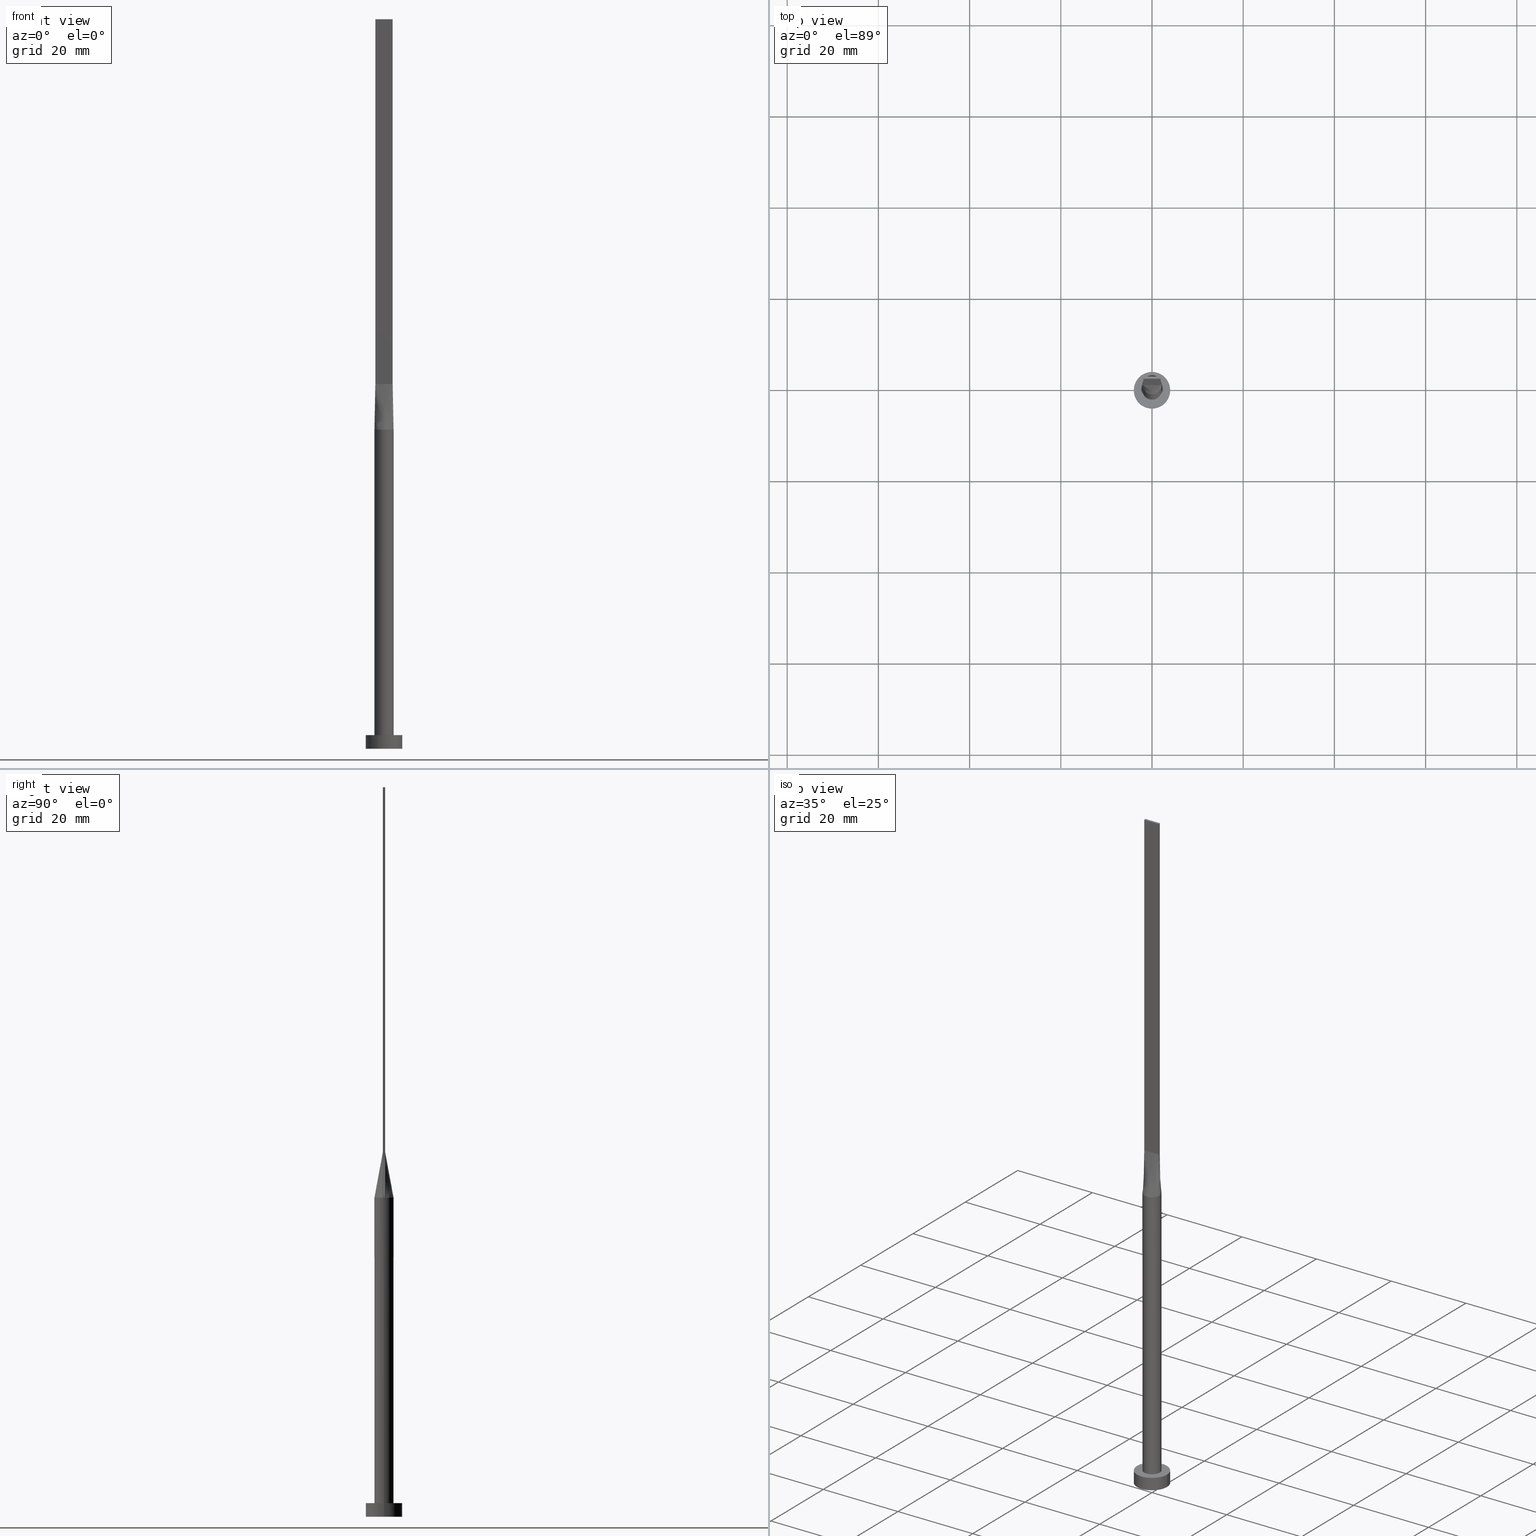
[diagram: canonical four-view strip — front | top / right | iso, engineering-drawing reading convention]
A machine part, canonical four-view strip (front | top / right | iso — engineering-drawing reading convention). The complete STEP part file that produces these views, byte-faithful:
ISO-10303-21;
HEADER;
FILE_DESCRIPTION (( 'STEP AP203' ),
    '1' );
FILE_NAME ('c076.STEP',
    '2026-02-12T09:05:30',
    ( '' ),
    ( '' ),
    'SwSTEP 2.0',
    'SolidWorks 2019',
    '' );
FILE_SCHEMA (( 'CONFIG_CONTROL_DESIGN' ));
ENDSEC;

DATA;
#1 = EDGE_CURVE ( 'NONE', #322, #348, #307, .T. ) ;
#2 = VERTEX_POINT ( 'NONE', #399 ) ;
#3 = CARTESIAN_POINT ( 'NONE',  ( 0.6333333333333343029, -0.2499999999999996669, 79.99999999999998579 ) ) ;
#4 = ORIENTED_EDGE ( 'NONE', *, *, #154, .T. ) ;
#5 = CARTESIAN_POINT ( 'NONE',  ( 0.3069641454662044300, 2.100000000000000089, 70.00000000000000000 ) ) ;
#6 = ORIENTED_EDGE ( 'NONE', *, *, #168, .T. ) ;
#7 = EDGE_CURVE ( 'NONE', #393, #75, #578, .T. ) ;
#8 = CARTESIAN_POINT ( 'NONE',  ( -1.899999999999999911, 0.2500000000000002220, 80.00000000000000000 ) ) ;
#9 = VECTOR ( 'NONE', #572, 1000.000000000000114 ) ;
#10 = CYLINDRICAL_SURFACE ( 'NONE', #85, 4.000000000000000000 ) ;
#11 = EDGE_LOOP ( 'NONE', ( #44, #581, #527, #406 ) ) ;
#12 = LOCAL_TIME ( 10, 5, 30.00000000000000000, #465 ) ;
#13 = ORGANIZATION ( 'NEUR�EN�', 'NEUR�EN�', '' ) ;
#14 = AXIS2_PLACEMENT_3D ( 'NONE', #229, #189, #356 ) ;
#15 = DATE_TIME_ROLE ( 'creation_date' ) ;
#16 = CALENDAR_DATE ( 2026, 12, 2 ) ;
#17 = ORIENTED_EDGE ( 'NONE', *, *, #187, .F. ) ;
#18 = CC_DESIGN_DATE_AND_TIME_ASSIGNMENT ( #508, #318, ( #343 ) ) ;
#19 = PRODUCT_DEFINITION_SHAPE ( 'NONE', 'NONE',  #60 ) ;
#20 = CARTESIAN_POINT ( 'NONE',  ( -1.899999999999999911, -0.2499999999999995837, 80.00000000000000000 ) ) ;
#21 = CARTESIAN_POINT ( 'NONE',  ( -1.991027010319671220, 0.2619772381999564970, 75.00000000000001421 ) ) ;
#22 = PERSON_AND_ORGANIZATION_ROLE ( 'creator' ) ;
#23 = EDGE_CURVE ( 'NONE', #487, #361, #146, .T. ) ;
#24 = ADVANCED_BREP_SHAPE_REPRESENTATION ( 'c076', ( #309, #510 ), #159 ) ;
#25 = VECTOR ( 'NONE', #340, 1000.000000000000000 ) ;
#26 = CARTESIAN_POINT ( 'NONE',  ( -1.266666666666665941, -0.2499999999999995837, 79.99999999999998579 ) ) ;
#27 = DIRECTION ( 'NONE',  ( 1.000000000000000000, 0.000000000000000000, 0.000000000000000000 ) ) ;
#28 = ADVANCED_FACE ( 'NONE', ( #78 ), #531, .F. ) ;
#29 = CARTESIAN_POINT ( 'NONE',  ( -1.741666666666666474, -0.2499999999999995837, 79.99999999999998579 ) ) ;
#30 = CARTESIAN_POINT ( 'NONE',  ( -2.099923319482092765, -0.09170834779832252870, 70.00000000000000000 ) ) ;
#31 = FACE_OUTER_BOUND ( 'NONE', #317, .T. ) ;
#32 = CARTESIAN_POINT ( 'NONE',  ( 0.000000000000000000, 0.000000000000000000, 160.0000000000000000 ) ) ;
#33 = B_SPLINE_SURFACE_WITH_KNOTS ( 'NONE', 3, 1, ( 
 ( #296, #479 ),
 ( #256, #433 ),
 ( #292, #162 ),
 ( #30, #383 ),
 ( #108, #290 ),
 ( #342, #252 ) ),
 .UNSPECIFIED., .F., .F., .F.,
 ( 4, 2, 4 ),
 ( 2, 2 ),
 ( 0.000000000000000000, 0.5000000000000000000, 1.000000000000000000 ),
 ( 0.000000000000000000, 1.000000000000000000 ),
 .UNSPECIFIED. ) ;
#34 = CARTESIAN_POINT ( 'NONE',  ( -1.899999999999999911, -0.2499999999999995837, 160.0000000000000000 ) ) ;
#35 = ORIENTED_EDGE ( 'NONE', *, *, #65, .F. ) ;
#36 = ORIENTED_EDGE ( 'NONE', *, *, #275, .F. ) ;
#37 = CARTESIAN_POINT ( 'NONE',  ( -2.099961659741046649, -5.286755615166558459E-16, 70.00000000000000000 ) ) ;
#38 = AXIS2_PLACEMENT_3D ( 'NONE', #209, #381, #562 ) ;
#39 = CIRCLE ( 'NONE', #291, 4.000000000000000000 ) ;
#40 = EDGE_LOOP ( 'NONE', ( #87, #241 ) ) ;
#41 = CARTESIAN_POINT ( 'NONE',  ( -0.1583333333333323822, -0.2499999999999996392, 80.00000000000000000 ) ) ;
#42 = CARTESIAN_POINT ( 'NONE',  ( -1.370324685961209266, 1.611984358543462559, 70.00000000000001421 ) ) ;
#43 = CARTESIAN_POINT ( 'NONE',  ( 1.899999999999999689, 0.08333333333333341197, 79.99999999999998579 ) ) ;
#44 = ORIENTED_EDGE ( 'NONE', *, *, #23, .T. ) ;
#45 = ORIENTED_EDGE ( 'NONE', *, *, #144, .T. ) ;
#46 = LINE ( 'NONE', #315, #460 ) ;
#47 = EDGE_LOOP ( 'NONE', ( #129, #495, #311, #297 ) ) ;
#48 = EDGE_CURVE ( 'NONE', #497, #125, #395, .T. ) ;
#49 = ORIENTED_EDGE ( 'NONE', *, *, #549, .F. ) ;
#50 = CARTESIAN_POINT ( 'NONE',  ( 4.000000000000000000, 4.898587196589412829E-16, 0.000000000000000000 ) ) ;
#51 = ORIENTED_EDGE ( 'NONE', *, *, #117, .T. ) ;
#52 = PRODUCT_RELATED_PRODUCT_CATEGORY ( 'detail', '', ( #103 ) ) ;
#53 = AXIS2_PLACEMENT_3D ( 'NONE', #564, #469, #164 ) ;
#54 = CARTESIAN_POINT ( 'NONE',  ( 0.3069641454662038194, -2.100000000000000089, 70.00000000000000000 ) ) ;
#55 = ORIENTED_EDGE ( 'NONE', *, *, #272, .T. ) ;
#56 = CARTESIAN_POINT ( 'NONE',  ( 0.6333333333333314163, 0.2500000000000002220, 79.99999999999998579 ) ) ;
#57 = CARTESIAN_POINT ( 'NONE',  ( 0.000000000000000000, 0.000000000000000000, 0.000000000000000000 ) ) ;
#58 = CARTESIAN_POINT ( 'NONE',  ( -2.013179673790353341, 0.6348343983169374427, 69.99999999999998579 ) ) ;
#59 = DIRECTION ( 'NONE',  ( 1.000000000000000000, 0.000000000000000000, -0.000000000000000000 ) ) ;
#60 = PRODUCT_DEFINITION ( 'NEZN�M�', '', #262, #423 ) ;
#61 = CARTESIAN_POINT ( 'NONE',  ( -1.719140910005030554, 1.233222546295088762, 69.99999999999998579 ) ) ;
#62 = CARTESIAN_POINT ( 'NONE',  ( 1.843490440271194020, 1.028323931880309905, 69.99999999999998579 ) ) ;
#63 = CALENDAR_DATE ( 2026, 12, 2 ) ;
#64 = APPLICATION_CONTEXT ( 'configuration controlled 3d designs of mechanical parts and assemblies' ) ;
#65 = EDGE_CURVE ( 'NONE', #535, #125, #507, .T. ) ;
#66 = DIRECTION ( 'NONE',  ( 0.000000000000000000, 0.000000000000000000, 1.000000000000000000 ) ) ;
#67 = APPROVAL_PERSON_ORGANIZATION ( #419, #268, #368 ) ;
#68 = PERSON_AND_ORGANIZATION ( #391, #13 ) ;
#69 = LINE ( 'NONE', #111, #339 ) ;
#70 = CIRCLE ( 'NONE', #501, 4.000000000000000000 ) ;
#71 = DIRECTION ( 'NONE',  ( -0.000000000000000000, -0.000000000000000000, -1.000000000000000000 ) ) ;
#72 = CARTESIAN_POINT ( 'NONE',  ( -2.082200117151096208, 0.2739731464735293276, 70.00000000000000000 ) ) ;
#73 = LINE ( 'NONE', #213, #178 ) ;
#74 = ORIENTED_EDGE ( 'NONE', *, *, #539, .F. ) ;
#75 = VERTEX_POINT ( 'NONE', #474 ) ;
#76 = CARTESIAN_POINT ( 'NONE',  ( 1.719140910005030110, 1.233222546295088762, 70.00000000000000000 ) ) ;
#77 = ORIENTED_EDGE ( 'NONE', *, *, #1, .T. ) ;
#78 = FACE_OUTER_BOUND ( 'NONE', #135, .T. ) ;
#79 = CARTESIAN_POINT ( 'NONE',  ( -0.7916666666666655194, -0.2499999999999995837, 79.99999999999998579 ) ) ;
#80 = CARTESIAN_POINT ( 'NONE',  ( 1.144666002056102583, 1.784802689656027397, 70.00000000000000000 ) ) ;
#81 = DIRECTION ( 'NONE',  ( -0.000000000000000000, -0.000000000000000000, -1.000000000000000000 ) ) ;
#82 = DIRECTION ( 'NONE',  ( -1.000000000000000000, 0.000000000000000000, 0.000000000000000000 ) ) ;
#83 = CARTESIAN_POINT ( 'NONE',  ( 1.899999999999999023, -0.2499999999999997780, 160.0000000000000000 ) ) ;
#84 = ORIENTED_EDGE ( 'NONE', *, *, #441, .F. ) ;
#85 = AXIS2_PLACEMENT_3D ( 'NONE', #190, #310, #412 ) ;
#86 = DIRECTION ( 'NONE',  ( 0.000000000000000000, -1.000000000000000000, 0.000000000000000000 ) ) ;
#87 = ORIENTED_EDGE ( 'NONE', *, *, #128, .T. ) ;
#88 = DIRECTION ( 'NONE',  ( -0.000000000000000000, -0.000000000000000000, -1.000000000000000000 ) ) ;
#89 = ORIENTED_EDGE ( 'NONE', *, *, #533, .F. ) ;
#90 = CARTESIAN_POINT ( 'NONE',  ( 1.370324685961209044, 1.611984358543462781, 70.00000000000001421 ) ) ;
#91 = VERTEX_POINT ( 'NONE', #337 ) ;
#92 = DIRECTION ( 'NONE',  ( -1.000000000000000000, 0.000000000000000000, 0.000000000000000000 ) ) ;
#93 = ORIENTED_EDGE ( 'NONE', *, *, #187, .T. ) ;
#94 = APPROVAL_STATUS ( 'not_yet_approved' ) ;
#95 = VECTOR ( 'NONE', #86, 1000.000000000000000 ) ;
#96 = CARTESIAN_POINT ( 'NONE',  ( 1.144666002056102583, 1.784802689656027397, 70.00000000000000000 ) ) ;
#97 = CARTESIAN_POINT ( 'NONE',  ( 1.741666666666665586, 0.2500000000000002220, 79.99999999999998579 ) ) ;
#98 = EDGE_CURVE ( 'NONE', #91, #269, #514, .T. ) ;
#99 = CARTESIAN_POINT ( 'NONE',  ( 1.899999999999999023, 0.2500000000000002220, 80.00000000000000000 ) ) ;
#100 = PERSON_AND_ORGANIZATION ( #391, #13 ) ;
#101 = CARTESIAN_POINT ( 'NONE',  ( 2.082054020639342085, 0.2739544763999138266, 70.00000000000000000 ) ) ;
#102 = AXIS2_PLACEMENT_3D ( 'NONE', #378, #427, #27 ) ;
#103 = PRODUCT ( 'c076', 'c076', '', ( #244 ) ) ;
#104 = APPROVAL_ROLE ( '' ) ;
#105 = CARTESIAN_POINT ( 'NONE',  ( 2.100000000000000089, 2.571758278209441957E-16, 70.00000000000000000 ) ) ;
#106 = EDGE_CURVE ( 'NONE', #155, #497, #537, .T. ) ;
#107 = SHAPE_DEFINITION_REPRESENTATION ( #19, #24 ) ;
#108 = CARTESIAN_POINT ( 'NONE',  ( -2.093966886534509353, -0.1834166955966453350, 70.00000000000000000 ) ) ;
#109 = CARTESIAN_POINT ( 'NONE',  ( -1.144666002056102361, 1.784802689656027619, 70.00000000000001421 ) ) ;
#110 = CARTESIAN_POINT ( 'NONE',  ( -2.059419575438525385, -0.4459762599261209992, 70.00000000000002842 ) ) ;
#111 = CARTESIAN_POINT ( 'NONE',  ( 1.899999999999999023, -0.2499999999999997780, 160.0000000000000000 ) ) ;
#112 = AXIS2_PLACEMENT_3D ( 'NONE', #518, #133, #182 ) ;
#113 = VECTOR ( 'NONE', #359, 1000.000000000000000 ) ;
#114 = PLANE ( 'NONE',  #321 ) ;
#115 = VECTOR ( 'NONE', #88, 1000.000000000000000 ) ;
#116 = CC_DESIGN_APPROVAL ( #137, ( #343 ) ) ;
#117 = EDGE_CURVE ( 'NONE', #238, #322, #69, .T. ) ;
#118 = CARTESIAN_POINT ( 'NONE',  ( 2.082054020639342085, -0.2739544763999143262, 70.00000000000000000 ) ) ;
#119 = FACE_OUTER_BOUND ( 'NONE', #525, .T. ) ;
#120 = ORIENTED_EDGE ( 'NONE', *, *, #48, .T. ) ;
#121 = CARTESIAN_POINT ( 'NONE',  ( -1.843490440271193798, 1.028323931880310349, 70.00000000000001421 ) ) ;
#122 = AXIS2_PLACEMENT_3D ( 'NONE', #571, #175, #126 ) ;
#123 = DIRECTION ( 'NONE',  ( -0.000000000000000000, 1.000000000000000000, -0.000000000000000000 ) ) ;
#124 = CARTESIAN_POINT ( 'NONE',  ( 1.266666666666666829, -0.2499999999999996669, 79.99999999999998579 ) ) ;
#125 = VERTEX_POINT ( 'NONE', #250 ) ;
#126 = DIRECTION ( 'NONE',  ( 1.000000000000000000, -2.131628207280300558E-14, 0.000000000000000000 ) ) ;
#127 = CARTESIAN_POINT ( 'NONE',  ( -2.082200117151096208, 0.2739731464735293276, 70.00000000000000000 ) ) ;
#128 = EDGE_CURVE ( 'NONE', #91, #459, #222, .T. ) ;
#129 = ORIENTED_EDGE ( 'NONE', *, *, #328, .T. ) ;
#130 = CARTESIAN_POINT ( 'NONE',  ( 2.013179673790352897, -0.6348343983169382199, 69.99999999999998579 ) ) ;
#131 = ORIENTED_EDGE ( 'NONE', *, *, #539, .T. ) ;
#132 = FACE_OUTER_BOUND ( 'NONE', #390, .T. ) ;
#133 = DIRECTION ( 'NONE',  ( -1.000000000000000000, 1.734723475976807094E-15, 0.000000000000000000 ) ) ;
#134 = CARTESIAN_POINT ( 'NONE',  ( 2.100000000000000089, 2.571758278209441957E-16, 3.000000000000000000 ) ) ;
#135 = EDGE_LOOP ( 'NONE', ( #77, #235, #541, #51 ) ) ;
#136 = VECTOR ( 'NONE', #171, 1000.000000000000000 ) ;
#137 = APPROVAL ( #94, 'NEUR�EN�' ) ;
#138 = CARTESIAN_POINT ( 'NONE',  ( -2.082216547150284924, -0.2739753355370637133, 70.00000000000000000 ) ) ;
#139 = CARTESIAN_POINT ( 'NONE',  ( 2.082200219287980492, 0.2739732417105839035, 70.00000000000000000 ) ) ;
#140 = ADVANCED_FACE ( 'NONE', ( #167 ), #253, .F. ) ;
#141 = CARTESIAN_POINT ( 'NONE',  ( 0.000000000000000000, 0.000000000000000000, 70.00000000000000000 ) ) ;
#142 = LINE ( 'NONE', #316, #499 ) ;
#143 = COORDINATED_UNIVERSAL_TIME_OFFSET ( 1, 0, .AHEAD. ) ;
#144 = EDGE_CURVE ( 'NONE', #555, #269, #350, .T. ) ;
#145 = PLANE ( 'NONE',  #223 ) ;
#146 = CIRCLE ( 'NONE', #211, 2.100000000000000089 ) ;
#147 =( NAMED_UNIT ( * ) SI_UNIT ( $, .STERADIAN. ) SOLID_ANGLE_UNIT ( ) );
#148 = VECTOR ( 'NONE', #435, 1000.000000000000000 ) ;
#149 = APPROVAL ( #245, 'NEUR�EN�' ) ;
#150 = CARTESIAN_POINT ( 'NONE',  ( -2.082054020639342529, -0.2739544763999126609, 70.00000000000000000 ) ) ;
#151 = PERSON_AND_ORGANIZATION ( #391, #13 ) ;
#152 = VERTEX_POINT ( 'NONE', #246 ) ;
#153 = CARTESIAN_POINT ( 'NONE',  ( -2.059419575438525385, 0.4459762599261216653, 70.00000000000001421 ) ) ;
#154 = EDGE_CURVE ( 'NONE', #152, #535, #332, .T. ) ;
#155 = VERTEX_POINT ( 'NONE', #72 ) ;
#156 = PERSON_AND_ORGANIZATION_ROLE ( 'design_supplier' ) ;
#157 = VECTOR ( 'NONE', #266, 1000.000000000000000 ) ;
#158 = DIRECTION ( 'NONE',  ( 0.000000000000000000, 0.000000000000000000, 1.000000000000000000 ) ) ;
#159 =( GEOMETRIC_REPRESENTATION_CONTEXT ( 3 ) GLOBAL_UNCERTAINTY_ASSIGNED_CONTEXT ( ( #202 ) ) GLOBAL_UNIT_ASSIGNED_CONTEXT ( ( #326, #502, #147 ) ) REPRESENTATION_CONTEXT ( 'NONE', 'WORKASPACE' ) );
#160 = B_SPLINE_SURFACE_WITH_KNOTS ( 'NONE', 3, 1, ( 
 ( #323, #99 ),
 ( #286, #97 ),
 ( #283, #464 ),
 ( #62, #239 ),
 ( #416, #540 ),
 ( #90, #468 ),
 ( #96, #56 ),
 ( #424, #511 ),
 ( #471, #254 ),
 ( #166, #248 ),
 ( #380, #561 ),
 ( #109, #198 ),
 ( #196, #282 ),
 ( #61, #462 ),
 ( #503, #375 ),
 ( #58, #554 ),
 ( #153, #325 ),
 ( #288, #523 ) ),
 .UNSPECIFIED., .F., .F., .F.,
 ( 4, 2, 2, 2, 2, 2, 2, 2, 4 ),
 ( 2, 2 ),
 ( 0.000000000000000000, 0.1250000000000000000, 0.2500000000000000000, 0.3750000000000000000, 0.5000000000000000000, 0.6250000000000000000, 0.7500000000000000000, 0.8750000000000000000, 1.000000000000000000 ),
 ( 0.000000000000000000, 1.000000000000000000 ),
 .UNSPECIFIED. ) ;
#161 = CARTESIAN_POINT ( 'NONE',  ( -2.013179673790353341, -0.6348343983169372207, 70.00000000000000000 ) ) ;
#162 = CARTESIAN_POINT ( 'NONE',  ( -1.899999999999999689, 0.08333333333333359239, 79.99999999999998579 ) ) ;
#163 = ADVANCED_FACE ( 'NONE', ( #31 ), #565, .T. ) ;
#164 = DIRECTION ( 'NONE',  ( 1.000000000000000000, 0.000000000000000000, 0.000000000000000000 ) ) ;
#165 = AXIS2_PLACEMENT_3D ( 'NONE', #221, #478, #82 ) ;
#166 = CARTESIAN_POINT ( 'NONE',  ( -0.3069641454662043190, 2.100000000000000533, 70.00000000000001421 ) ) ;
#167 = FACE_OUTER_BOUND ( 'NONE', #451, .T. ) ;
#168 = EDGE_CURVE ( 'NONE', #2, #348, #303, .T. ) ;
#169 = DIRECTION ( 'NONE',  ( 1.000000000000000000, 0.000000000000000000, 0.000000000000000000 ) ) ;
#170 = EDGE_CURVE ( 'NONE', #2, #155, #493, .T. ) ;
#171 = DIRECTION ( 'NONE',  ( -1.000000000000000000, 0.000000000000000000, 0.000000000000000000 ) ) ;
#172 = CARTESIAN_POINT ( 'NONE',  ( 1.991027010319671220, 0.2619772381999570521, 75.00000000000001421 ) ) ;
#173 = CARTESIAN_POINT ( 'NONE',  ( 0.000000000000000000, 0.000000000000000000, 70.00000000000000000 ) ) ;
#174 = DIRECTION ( 'NONE',  ( 1.000000000000000000, 0.000000000000000000, 0.000000000000000000 ) ) ;
#175 = DIRECTION ( 'NONE',  ( 0.000000000000000000, 0.000000000000000000, 1.000000000000000000 ) ) ;
#176 = CARTESIAN_POINT ( 'NONE',  ( 2.059419575438525385, 0.4459762599261217764, 70.00000000000001421 ) ) ;
#177 = CIRCLE ( 'NONE', #249, 2.100000000000000089 ) ;
#178 = VECTOR ( 'NONE', #387, 1000.000000000000114 ) ;
#179 = CARTESIAN_POINT ( 'NONE',  ( 2.093966886534508909, 0.1834166955966461954, 70.00000000000000000 ) ) ;
#180 = ORIENTED_EDGE ( 'NONE', *, *, #542, .T. ) ;
#181 = PLANE ( 'NONE',  #14 ) ;
#182 = DIRECTION ( 'NONE',  ( -1.734723475976807094E-15, -1.000000000000000000, 0.000000000000000000 ) ) ;
#183 = CARTESIAN_POINT ( 'NONE',  ( 0.6126365619873340718, -2.029890967560283865, 69.99999999999998579 ) ) ;
#184 = DIRECTION ( 'NONE',  ( 0.000000000000000000, 0.000000000000000000, 1.000000000000000000 ) ) ;
#185 = ORIENTED_EDGE ( 'NONE', *, *, #154, .F. ) ;
#186 = CARTESIAN_POINT ( 'NONE',  ( 0.7916666666666672958, -0.2499999999999996669, 79.99999999999998579 ) ) ;
#187 = EDGE_CURVE ( 'NONE', #75, #277, #485, .T. ) ;
#188 = DIRECTION ( 'NONE',  ( 0.000000000000000000, 0.000000000000000000, 1.000000000000000000 ) ) ;
#189 = DIRECTION ( 'NONE',  ( 5.706327223607918787E-17, 1.000000000000000000, -0.000000000000000000 ) ) ;
#190 = CARTESIAN_POINT ( 'NONE',  ( 0.000000000000000000, 0.000000000000000000, 3.000000000000000000 ) ) ;
#191 = ORIENTED_EDGE ( 'NONE', *, *, #106, .T. ) ;
#192 = DIRECTION ( 'NONE',  ( 1.000000000000000000, 0.000000000000000000, 0.000000000000000000 ) ) ;
#193 = DIRECTION ( 'NONE',  ( 0.01820233363815270192, -0.002395043899756839692, 0.9998314552037476099 ) ) ;
#194 = DATE_AND_TIME ( #461, #524 ) ;
#195 = ORIENTED_EDGE ( 'NONE', *, *, #384, .F. ) ;
#196 = CARTESIAN_POINT ( 'NONE',  ( -1.370324685961209266, 1.611984358543462559, 70.00000000000001421 ) ) ;
#197 = PERSON_AND_ORGANIZATION ( #391, #13 ) ;
#198 = CARTESIAN_POINT ( 'NONE',  ( -0.6333333333333349691, 0.2500000000000002220, 79.99999999999998579 ) ) ;
#199 = APPLICATION_CONTEXT ( 'configuration controlled 3d designs of mechanical parts and assemblies' ) ;
#200 = APPLICATION_PROTOCOL_DEFINITION ( 'international standard', 'config_control_design', 1994, #199 ) ;
#201 = EDGE_LOOP ( 'NONE', ( #480, #17, #227, #55 ) ) ;
#202 = UNCERTAINTY_MEASURE_WITH_UNIT (LENGTH_MEASURE( 1.000000000000000082E-05 ), #326, 'distance_accuracy_value', 'NONE');
#203 = COORDINATED_UNIVERSAL_TIME_OFFSET ( 1, 0, .AHEAD. ) ;
#204 = DIRECTION ( 'NONE',  ( 0.000000000000000000, 0.000000000000000000, 1.000000000000000000 ) ) ;
#205 = AXIS2_PLACEMENT_3D ( 'NONE', #403, #184, #452 ) ;
#206 = DIRECTION ( 'NONE',  ( 1.000000000000000000, 0.000000000000000000, 0.000000000000000000 ) ) ;
#207 = VECTOR ( 'NONE', #193, 1000.000000000000114 ) ;
#208 = CARTESIAN_POINT ( 'NONE',  ( 1.899999999999999911, 0.2500000000000002220, 80.00000000000000000 ) ) ;
#209 = CARTESIAN_POINT ( 'NONE',  ( -1.899999999999999911, 0.2500000000000002220, 160.0000000000000000 ) ) ;
#210 = DIRECTION ( 'NONE',  ( -0.000000000000000000, -0.000000000000000000, -1.000000000000000000 ) ) ;
#211 = AXIS2_PLACEMENT_3D ( 'NONE', #346, #219, #300 ) ;
#212 = DIRECTION ( 'NONE',  ( 0.000000000000000000, 0.000000000000000000, 1.000000000000000000 ) ) ;
#213 = CARTESIAN_POINT ( 'NONE',  ( -1.991027010319671220, -0.2619772381999561084, 75.00000000000001421 ) ) ;
#214 = ORIENTED_EDGE ( 'NONE', *, *, #398, .T. ) ;
#215 = CARTESIAN_POINT ( 'NONE',  ( 1.899999999999999023, -0.2499999999999997780, 80.00000000000000000 ) ) ;
#216 = LOCAL_TIME ( 10, 5, 30.00000000000000000, #377 ) ;
#217 = VERTEX_POINT ( 'NONE', #489 ) ;
#218 = CARTESIAN_POINT ( 'NONE',  ( -1.899999999999999911, -0.2499999999999995837, 160.0000000000000000 ) ) ;
#219 = DIRECTION ( 'NONE',  ( 0.000000000000000000, 0.000000000000000000, 1.000000000000000000 ) ) ;
#220 = CARTESIAN_POINT ( 'NONE',  ( -1.899999999999999911, -0.2499999999999995837, 160.0000000000000000 ) ) ;
#221 = CARTESIAN_POINT ( 'NONE',  ( 0.000000000000000000, 0.000000000000000000, 70.00000000000000000 ) ) ;
#222 = CIRCLE ( 'NONE', #102, 4.000000000000000000 ) ;
#223 = AXIS2_PLACEMENT_3D ( 'NONE', #551, #505, #59 ) ;
#224 = ORIENTED_EDGE ( 'NONE', *, *, #398, .F. ) ;
#225 = CARTESIAN_POINT ( 'NONE',  ( 0.000000000000000000, 0.000000000000000000, 3.000000000000000000 ) ) ;
#226 = FACE_OUTER_BOUND ( 'NONE', #486, .T. ) ;
#227 = ORIENTED_EDGE ( 'NONE', *, *, #7, .F. ) ;
#228 = DIRECTION ( 'NONE',  ( 1.000000000000000000, 0.000000000000000000, 0.000000000000000000 ) ) ;
#229 = CARTESIAN_POINT ( 'NONE',  ( -1.899999999999999911, -0.2499999999999995837, 160.0000000000000000 ) ) ;
#230 = FACE_OUTER_BOUND ( 'NONE', #388, .T. ) ;
#231 = ORIENTED_EDGE ( 'NONE', *, *, #429, .F. ) ;
#232 = EDGE_LOOP ( 'NONE', ( #185, #231, #255, #402, #120, #457 ) ) ;
#233 = VECTOR ( 'NONE', #123, 1000.000000000000000 ) ;
#234 = CARTESIAN_POINT ( 'NONE',  ( 0.1583333333333343529, -0.2499999999999996669, 79.99999999999998579 ) ) ;
#235 = ORIENTED_EDGE ( 'NONE', *, *, #272, .F. ) ;
#236 = PERSON_AND_ORGANIZATION ( #391, #13 ) ;
#237 = APPROVAL_STATUS ( 'not_yet_approved' ) ;
#238 = VERTEX_POINT ( 'NONE', #83 ) ;
#239 = CARTESIAN_POINT ( 'NONE',  ( 1.266666666666665053, 0.2500000000000002220, 79.99999999999998579 ) ) ;
#240 = PERSON_AND_ORGANIZATION_ROLE ( 'design_owner' ) ;
#241 = ORIENTED_EDGE ( 'NONE', *, *, #481, .T. ) ;
#242 = CC_DESIGN_PERSON_AND_ORGANIZATION_ASSIGNMENT ( #151, #156, ( #262 ) ) ;
#243 = ADVANCED_FACE ( 'NONE', ( #226 ), #312, .F. ) ;
#244 = MECHANICAL_CONTEXT ( 'NONE', #199, 'mechanical' ) ;
#245 = APPROVAL_STATUS ( 'not_yet_approved' ) ;
#246 = CARTESIAN_POINT ( 'NONE',  ( 2.099961659741046649, 5.289748680732500402E-16, 70.00000000000000000 ) ) ;
#247 = ADVANCED_FACE ( 'NONE', ( #230 ), #10, .T. ) ;
#248 = CARTESIAN_POINT ( 'NONE',  ( -0.1583333333333352411, 0.2500000000000002220, 79.99999999999998579 ) ) ;
#249 = AXIS2_PLACEMENT_3D ( 'NONE', #450, #188, #192 ) ;
#250 = CARTESIAN_POINT ( 'NONE',  ( -2.100000000000000089, 0.000000000000000000, 3.000000000000000000 ) ) ;
#251 = VECTOR ( 'NONE', #528, 1000.000000000000000 ) ;
#252 = CARTESIAN_POINT ( 'NONE',  ( -1.899999999999999911, -0.2499999999999995837, 80.00000000000000000 ) ) ;
#253 = PLANE ( 'NONE',  #38 ) ;
#254 = CARTESIAN_POINT ( 'NONE',  ( 0.1583333333333314108, 0.2500000000000002220, 80.00000000000000000 ) ) ;
#255 = ORIENTED_EDGE ( 'NONE', *, *, #23, .F. ) ;
#256 = CARTESIAN_POINT ( 'NONE',  ( -2.093966886534509353, 0.1834166955966458346, 70.00000000000000000 ) ) ;
#257 = ORIENTED_EDGE ( 'NONE', *, *, #521, .T. ) ;
#258 = LINE ( 'NONE', #389, #148 ) ;
#259 = AXIS2_PLACEMENT_3D ( 'NONE', #141, #305, #92 ) ;
#260 = CARTESIAN_POINT ( 'NONE',  ( 1.370324685961209044, 1.611984358543462781, 70.00000000000001421 ) ) ;
#261 = ORIENTED_EDGE ( 'NONE', *, *, #98, .F. ) ;
#262 = PRODUCT_DEFINITION_FORMATION_WITH_SPECIFIED_SOURCE ( 'LIBOVOLN�', '', #103, .NOT_KNOWN. ) ;
#263 = ORIENTED_EDGE ( 'NONE', *, *, #384, .T. ) ;
#264 = CARTESIAN_POINT ( 'NONE',  ( 1.583333333333332815, -0.2499999999999997224, 79.99999999999998579 ) ) ;
#265 = EDGE_CURVE ( 'NONE', #125, #535, #177, .T. ) ;
#266 = DIRECTION ( 'NONE',  ( -0.000000000000000000, -0.000000000000000000, -1.000000000000000000 ) ) ;
#267 = CARTESIAN_POINT ( 'NONE',  ( 1.899999999999999689, -0.1666666666666665186, 79.99999999999998579 ) ) ;
#268 = APPROVAL ( #237, 'NEUR�EN�' ) ;
#269 = VERTEX_POINT ( 'NONE', #544 ) ;
#270 = CARTESIAN_POINT ( 'NONE',  ( -1.899999999999999911, 0.2500000000000002220, 80.00000000000000000 ) ) ;
#271 = ORIENTED_EDGE ( 'NONE', *, *, #481, .F. ) ;
#272 = EDGE_CURVE ( 'NONE', #393, #348, #142, .T. ) ;
#273 = CARTESIAN_POINT ( 'NONE',  ( 2.093966886534508909, -0.1834166955966466950, 70.00000000000000000 ) ) ;
#274 = CARTESIAN_POINT ( 'NONE',  ( 0.000000000000000000, 0.000000000000000000, 70.00000000000000000 ) ) ;
#275 = EDGE_CURVE ( 'NONE', #75, #314, #369, .T. ) ;
#276 = CARTESIAN_POINT ( 'NONE',  ( -1.719140910005030998, -1.233222546295087652, 69.99999999999998579 ) ) ;
#277 = VERTEX_POINT ( 'NONE', #401 ) ;
#278 = APPROVAL_PERSON_ORGANIZATION ( #236, #137, #104 ) ;
#279 = ORIENTED_EDGE ( 'NONE', *, *, #65, .T. ) ;
#280 = DATE_AND_TIME ( #414, #216 ) ;
#281 = DIRECTION ( 'NONE',  ( -0.000000000000000000, -0.000000000000000000, -1.000000000000000000 ) ) ;
#282 = CARTESIAN_POINT ( 'NONE',  ( -0.7916666666666681840, 0.2500000000000002220, 79.99999999999998579 ) ) ;
#283 = CARTESIAN_POINT ( 'NONE',  ( 2.013179673790353341, 0.6348343983169372207, 69.99999999999998579 ) ) ;
#284 = APPLICATION_PROTOCOL_DEFINITION ( 'international standard', 'config_control_design', 1994, #64 ) ;
#285 = ORIENTED_EDGE ( 'NONE', *, *, #170, .F. ) ;
#286 = CARTESIAN_POINT ( 'NONE',  ( 2.059419575438525385, 0.4459762599261217764, 70.00000000000001421 ) ) ;
#287 = PERSON_AND_ORGANIZATION_ROLE ( 'creator' ) ;
#288 = CARTESIAN_POINT ( 'NONE',  ( -2.082054020639342529, 0.2739544763999127719, 70.00000000000000000 ) ) ;
#289 = ADVANCED_FACE ( 'NONE', ( #432 ), #295, .T. ) ;
#290 = CARTESIAN_POINT ( 'NONE',  ( -1.899999999999999689, -0.1666666666666662688, 79.99999999999998579 ) ) ;
#291 = AXIS2_PLACEMENT_3D ( 'NONE', #225, #488, #174 ) ;
#292 = CARTESIAN_POINT ( 'NONE',  ( -2.099923319482092765, 0.09170834779832304218, 70.00000000000000000 ) ) ;
#293 = EDGE_CURVE ( 'NONE', #238, #393, #517, .T. ) ;
#294 = CARTESIAN_POINT ( 'NONE',  ( 1.899999999999999023, -0.2499999999999997780, 160.0000000000000000 ) ) ;
#295 = CYLINDRICAL_SURFACE ( 'NONE', #165, 2.100000000000000089 ) ;
#296 = CARTESIAN_POINT ( 'NONE',  ( -2.082054020639342529, 0.2739544763999132160, 70.00000000000000000 ) ) ;
#297 = ORIENTED_EDGE ( 'NONE', *, *, #549, .T. ) ;
#298 = VECTOR ( 'NONE', #210, 1000.000000000000000 ) ;
#299 = CARTESIAN_POINT ( 'NONE',  ( -2.013179673790353341, 0.6348343983169374427, 69.99999999999998579 ) ) ;
#300 = DIRECTION ( 'NONE',  ( 1.000000000000000000, 0.000000000000000000, 0.000000000000000000 ) ) ;
#301 = CARTESIAN_POINT ( 'NONE',  ( 0.3166666666666677621, -0.2499999999999996669, 79.99999999999998579 ) ) ;
#302 = PLANE ( 'NONE',  #372 ) ;
#303 = LINE ( 'NONE', #172, #9 ) ;
#304 = CARTESIAN_POINT ( 'NONE',  ( 2.099923319482092765, -0.09170834779832345851, 70.00000000000000000 ) ) ;
#305 = DIRECTION ( 'NONE',  ( -0.000000000000000000, -0.000000000000000000, -1.000000000000000000 ) ) ;
#306 = CARTESIAN_POINT ( 'NONE',  ( -1.719140910005030554, 1.233222546295088762, 69.99999999999998579 ) ) ;
#307 = LINE ( 'NONE', #569, #233 ) ;
#308 = LINE ( 'NONE', #8, #95 ) ;
#309 = MANIFOLD_SOLID_BREP ( 'P�idat vysunut�m5', #410 ) ;
#310 = DIRECTION ( 'NONE',  ( -0.000000000000000000, -0.000000000000000000, -1.000000000000000000 ) ) ;
#311 = ORIENTED_EDGE ( 'NONE', *, *, #413, .F. ) ;
#312 = PLANE ( 'NONE',  #205 ) ;
#313 = CARTESIAN_POINT ( 'NONE',  ( -0.6333333333333321935, -0.2499999999999995837, 79.99999999999998579 ) ) ;
#314 = VERTEX_POINT ( 'NONE', #34 ) ;
#315 = CARTESIAN_POINT ( 'NONE',  ( 4.000000000000000000, 4.898587196589412829E-16, 3.000000000000000000 ) ) ;
#316 = CARTESIAN_POINT ( 'NONE',  ( 1.899999999999999911, 0.2500000000000002220, 160.0000000000000000 ) ) ;
#317 = EDGE_LOOP ( 'NONE', ( #438, #364, #374, #214 ) ) ;
#318 = DATE_TIME_ROLE ( 'classification_date' ) ;
#319 = DIRECTION ( 'NONE',  ( 0.000000000000000000, -1.000000000000000000, 0.000000000000000000 ) ) ;
#320 = CARTESIAN_POINT ( 'NONE',  ( 0.000000000000000000, 0.000000000000000000, 0.000000000000000000 ) ) ;
#321 = AXIS2_PLACEMENT_3D ( 'NONE', #338, #568, #345 ) ;
#322 = VERTEX_POINT ( 'NONE', #215 ) ;
#323 = CARTESIAN_POINT ( 'NONE',  ( 2.082054020639342529, 0.2739544763999133825, 70.00000000000000000 ) ) ;
#324 = SECURITY_CLASSIFICATION_LEVEL ( 'unclassified' ) ;
#325 = CARTESIAN_POINT ( 'NONE',  ( -1.741666666666666918, 0.2500000000000002220, 79.99999999999998579 ) ) ;
#326 =( LENGTH_UNIT ( ) NAMED_UNIT ( * ) SI_UNIT ( .MILLI., .METRE. ) );
#327 = EDGE_LOOP ( 'NONE', ( #494, #263, #442, #415 ) ) ;
#328 = EDGE_CURVE ( 'NONE', #217, #322, #258, .T. ) ;
#329 = AXIS2_PLACEMENT_3D ( 'NONE', #558, #425, #447 ) ;
#330 = PERSON_AND_ORGANIZATION_ROLE ( 'classification_officer' ) ;
#331 = EDGE_CURVE ( 'NONE', #217, #487, #73, .T. ) ;
#332 = LINE ( 'NONE', #105, #25 ) ;
#333 = CC_DESIGN_APPROVAL ( #268, ( #60 ) ) ;
#334 = CARTESIAN_POINT ( 'NONE',  ( 0.000000000000000000, 0.000000000000000000, 70.00000000000000000 ) ) ;
#335 = CC_DESIGN_PERSON_AND_ORGANIZATION_ASSIGNMENT ( #68, #22, ( #60 ) ) ;
#336 = CARTESIAN_POINT ( 'NONE',  ( 2.082216499796571085, -0.2739752411676472654, 70.00000000000000000 ) ) ;
#337 = CARTESIAN_POINT ( 'NONE',  ( -4.000000000000000000, 0.000000000000000000, 3.000000000000000000 ) ) ;
#338 = CARTESIAN_POINT ( 'NONE',  ( 1.899999999999999911, 0.2500000000000002220, 160.0000000000000000 ) ) ;
#339 = VECTOR ( 'NONE', #71, 1000.000000000000000 ) ;
#340 = DIRECTION ( 'NONE',  ( -0.000000000000000000, -0.000000000000000000, -1.000000000000000000 ) ) ;
#341 = CC_DESIGN_PERSON_AND_ORGANIZATION_ASSIGNMENT ( #463, #240, ( #103 ) ) ;
#342 = CARTESIAN_POINT ( 'NONE',  ( -2.082054020639342529, -0.2739544763999126609, 70.00000000000000000 ) ) ;
#343 = SECURITY_CLASSIFICATION ( '', '', #324 ) ;
#344 = FACE_OUTER_BOUND ( 'NONE', #404, .T. ) ;
#345 = DIRECTION ( 'NONE',  ( 0.000000000000000000, -0.000000000000000000, -1.000000000000000000 ) ) ;
#346 = CARTESIAN_POINT ( 'NONE',  ( 0.000000000000000000, 0.000000000000000000, 70.00000000000000000 ) ) ;
#347 = CARTESIAN_POINT ( 'NONE',  ( -0.6126365619873356261, 2.029890967560284754, 70.00000000000001421 ) ) ;
#348 = VERTEX_POINT ( 'NONE', #208 ) ;
#349 = CARTESIAN_POINT ( 'NONE',  ( -0.3166666666666655972, -0.2499999999999995837, 79.99999999999998579 ) ) ;
#350 = CIRCLE ( 'NONE', #53, 4.000000000000000000 ) ;
#351 = ADVANCED_FACE ( 'NONE', ( #382 ), #114, .F. ) ;
#352 = ORIENTED_EDGE ( 'NONE', *, *, #1, .F. ) ;
#353 = VECTOR ( 'NONE', #496, 1000.000000000000114 ) ;
#354 = CARTESIAN_POINT ( 'NONE',  ( -0.3069641454662043190, 2.100000000000000533, 70.00000000000001421 ) ) ;
#355 = CARTESIAN_POINT ( 'NONE',  ( 0.000000000000000000, 0.000000000000000000, 3.000000000000000000 ) ) ;
#356 = DIRECTION ( 'NONE',  ( -1.000000000000000000, 5.706327223607918787E-17, 0.000000000000000000 ) ) ;
#357 = LINE ( 'NONE', #218, #251 ) ;
#358 = CARTESIAN_POINT ( 'NONE',  ( 2.099923319482092765, 0.09170834779832297279, 70.00000000000000000 ) ) ;
#359 = DIRECTION ( 'NONE',  ( -1.000000000000000000, -0.000000000000000000, -0.000000000000000000 ) ) ;
#360 = CARTESIAN_POINT ( 'NONE',  ( -1.899999999999999911, 0.2500000000000002220, 160.0000000000000000 ) ) ;
#361 = VERTEX_POINT ( 'NONE', #336 ) ;
#362 = ADVANCED_FACE ( 'NONE', ( #119 ), #33, .T. ) ;
#363 = CARTESIAN_POINT ( 'NONE',  ( 1.719140910005029443, -1.233222546295088984, 70.00000000000000000 ) ) ;
#364 = ORIENTED_EDGE ( 'NONE', *, *, #128, .F. ) ;
#365 = AXIS2_PLACEMENT_3D ( 'NONE', #334, #204, #472 ) ;
#366 = FACE_OUTER_BOUND ( 'NONE', #444, .T. ) ;
#367 = ORIENTED_EDGE ( 'NONE', *, *, #429, .T. ) ;
#368 = APPROVAL_ROLE ( '' ) ;
#369 = LINE ( 'NONE', #534, #574 ) ;
#370 = APPROVAL_DATE_TIME ( #194, #137 ) ;
#371 = FACE_OUTER_BOUND ( 'NONE', #40, .T. ) ;
#372 = AXIS2_PLACEMENT_3D ( 'NONE', #32, #212, #386 ) ;
#373 = DATE_AND_TIME ( #557, #483 ) ;
#374 = ORIENTED_EDGE ( 'NONE', *, *, #98, .T. ) ;
#375 = CARTESIAN_POINT ( 'NONE',  ( -1.266666666666667718, 0.2500000000000002220, 79.99999999999998579 ) ) ;
#376 = DATE_AND_TIME ( #16, #436 ) ;
#377 = COORDINATED_UNIVERSAL_TIME_OFFSET ( 1, 0, .AHEAD. ) ;
#378 = CARTESIAN_POINT ( 'NONE',  ( 0.000000000000000000, 0.000000000000000000, 3.000000000000000000 ) ) ;
#379 = AXIS2_PLACEMENT_3D ( 'NONE', #355, #158, #206 ) ;
#380 = CARTESIAN_POINT ( 'NONE',  ( -0.6126365619873356261, 2.029890967560284754, 70.00000000000001421 ) ) ;
#381 = DIRECTION ( 'NONE',  ( 1.000000000000000000, 0.000000000000000000, -0.000000000000000000 ) ) ;
#382 = FACE_OUTER_BOUND ( 'NONE', #201, .T. ) ;
#383 = CARTESIAN_POINT ( 'NONE',  ( -1.899999999999999689, -0.08333333333333300952, 79.99999999999998579 ) ) ;
#384 = EDGE_CURVE ( 'NONE', #155, #277, #475, .T. ) ;
#385 = CARTESIAN_POINT ( 'NONE',  ( -4.000000000000000000, 0.000000000000000000, 3.000000000000000000 ) ) ;
#386 = DIRECTION ( 'NONE',  ( 1.000000000000000000, 0.000000000000000000, -0.000000000000000000 ) ) ;
#387 = DIRECTION ( 'NONE',  ( -0.01820233363815270192, -0.002395043899756893902, -0.9998314552037476099 ) ) ;
#388 = EDGE_LOOP ( 'NONE', ( #271, #257, #45, #261 ) ) ;
#389 = CARTESIAN_POINT ( 'NONE',  ( -1.899999999999999911, -0.2499999999999995837, 80.00000000000000000 ) ) ;
#390 = EDGE_LOOP ( 'NONE', ( #439, #538, #431, #491 ) ) ;
#391 = PERSON ( 'NEUR�EN�', 'NEUR�EN�', 'NEUR�EN�', ('NEUR�EN�'), ('NEUR�EN�'), ('NEUR�EN�') ) ;
#392 = CARTESIAN_POINT ( 'NONE',  ( 1.899999999999999911, -0.2499999999999997780, 80.00000000000000000 ) ) ;
#393 = VERTEX_POINT ( 'NONE', #548 ) ;
#394 = ADVANCED_FACE ( 'NONE', ( #421, #371 ), #145, .T. ) ;
#395 = LINE ( 'NONE', #570, #515 ) ;
#396 = FACE_OUTER_BOUND ( 'NONE', #47, .T. ) ;
#397 = CIRCLE ( 'NONE', #122, 2.100000000000000089 ) ;
#398 = EDGE_CURVE ( 'NONE', #269, #555, #70, .T. ) ;
#399 = CARTESIAN_POINT ( 'NONE',  ( 2.082200219287980492, 0.2739732417105839035, 70.00000000000000000 ) ) ;
#400 = CARTESIAN_POINT ( 'NONE',  ( 1.144666002056101028, -1.784802689656028507, 70.00000000000001421 ) ) ;
#401 = CARTESIAN_POINT ( 'NONE',  ( -1.899999999999999911, 0.2500000000000002220, 80.00000000000000000 ) ) ;
#402 = ORIENTED_EDGE ( 'NONE', *, *, #542, .F. ) ;
#403 = CARTESIAN_POINT ( 'NONE',  ( 0.000000000000000000, 0.000000000000000000, 0.000000000000000000 ) ) ;
#404 = EDGE_LOOP ( 'NONE', ( #367, #545, #6, #352, #89 ) ) ;
#405 = CARTESIAN_POINT ( 'NONE',  ( -0.3069641454662052071, -2.100000000000000089, 70.00000000000000000 ) ) ;
#406 = ORIENTED_EDGE ( 'NONE', *, *, #331, .T. ) ;
#407 = CARTESIAN_POINT ( 'NONE',  ( -1.108333333333332282, -0.2499999999999995837, 79.99999999999998579 ) ) ;
#408 = ADVANCED_FACE ( 'NONE', ( #466 ), #160, .T. ) ;
#409 = ORIENTED_EDGE ( 'NONE', *, *, #106, .F. ) ;
#410 = CLOSED_SHELL ( 'NONE', ( #573, #247, #163, #394, #243, #289, #477, #445, #362, #408, #351, #140, #563, #28, #430 ) ) ;
#411 = LINE ( 'NONE', #532, #353 ) ;
#412 = DIRECTION ( 'NONE',  ( -1.000000000000000000, 0.000000000000000000, 0.000000000000000000 ) ) ;
#413 = EDGE_CURVE ( 'NONE', #314, #238, #357, .T. ) ;
#414 = CALENDAR_DATE ( 2026, 12, 2 ) ;
#415 = ORIENTED_EDGE ( 'NONE', *, *, #168, .F. ) ;
#416 = CARTESIAN_POINT ( 'NONE',  ( 1.719140910005030110, 1.233222546295088762, 70.00000000000000000 ) ) ;
#417 = VECTOR ( 'NONE', #476, 1000.000000000000000 ) ;
#418 = CARTESIAN_POINT ( 'NONE',  ( 4.000000000000000000, 4.898587196589412829E-16, 3.000000000000000000 ) ) ;
#419 = PERSON_AND_ORGANIZATION ( #391, #13 ) ;
#420 = ORIENTED_EDGE ( 'NONE', *, *, #265, .F. ) ;
#421 = FACE_BOUND ( 'NONE', #453, .T. ) ;
#422 = CARTESIAN_POINT ( 'NONE',  ( 1.899999999999999911, 0.2500000000000002220, 80.00000000000000000 ) ) ;
#423 = DESIGN_CONTEXT ( 'detailed design', #64, 'design' ) ;
#424 = CARTESIAN_POINT ( 'NONE',  ( 0.6126365619873356261, 2.029890967560284754, 70.00000000000001421 ) ) ;
#425 = DIRECTION ( 'NONE',  ( -0.000000000000000000, -0.000000000000000000, -1.000000000000000000 ) ) ;
#426 = B_SPLINE_SURFACE_WITH_KNOTS ( 'NONE', 3, 1, ( 
 ( #150, #20 ),
 ( #110, #29 ),
 ( #161, #513 ),
 ( #559, #26 ),
 ( #276, #407 ),
 ( #484, #79 ),
 ( #446, #313 ),
 ( #577, #349 ),
 ( #405, #41 ),
 ( #54, #234 ),
 ( #183, #301 ),
 ( #400, #3 ),
 ( #522, #186 ),
 ( #363, #449 ),
 ( #455, #124 ),
 ( #130, #264 ),
 ( #526, #579 ),
 ( #536, #490 ) ),
 .UNSPECIFIED., .F., .F., .F.,
 ( 4, 2, 2, 2, 2, 2, 2, 2, 4 ),
 ( 2, 2 ),
 ( 0.000000000000000000, 0.1249999999999999722, 0.2500000000000000000, 0.3750000000000000000, 0.5000000000000000000, 0.6250000000000001110, 0.7500000000000000000, 0.8750000000000000000, 1.000000000000000000 ),
 ( 0.000000000000000000, 1.000000000000000000 ),
 .UNSPECIFIED. ) ;
#427 = DIRECTION ( 'NONE',  ( 0.000000000000000000, 0.000000000000000000, 1.000000000000000000 ) ) ;
#428 = CC_DESIGN_DATE_AND_TIME_ASSIGNMENT ( #376, #15, ( #60 ) ) ;
#429 = EDGE_CURVE ( 'NONE', #361, #152, #397, .T. ) ;
#430 = ADVANCED_FACE ( 'NONE', ( #132 ), #302, .T. ) ;
#431 = ORIENTED_EDGE ( 'NONE', *, *, #413, .T. ) ;
#432 = FACE_OUTER_BOUND ( 'NONE', #232, .T. ) ;
#433 = CARTESIAN_POINT ( 'NONE',  ( -1.899999999999999689, 0.1666666666666669072, 79.99999999999998579 ) ) ;
#434 = CARTESIAN_POINT ( 'NONE',  ( 1.899999999999999911, 0.2500000000000002220, 160.0000000000000000 ) ) ;
#435 = DIRECTION ( 'NONE',  ( 1.000000000000000000, -5.706327223607918787E-17, 0.000000000000000000 ) ) ;
#436 = LOCAL_TIME ( 10, 5, 30.00000000000000000, #203 ) ;
#437 = CARTESIAN_POINT ( 'NONE',  ( -2.059419575438525385, 0.4459762599261216653, 70.00000000000001421 ) ) ;
#438 = ORIENTED_EDGE ( 'NONE', *, *, #521, .F. ) ;
#439 = ORIENTED_EDGE ( 'NONE', *, *, #7, .T. ) ;
#440 = DIRECTION ( 'NONE',  ( 0.000000000000000000, 0.000000000000000000, 1.000000000000000000 ) ) ;
#441 = EDGE_CURVE ( 'NONE', #152, #2, #473, .T. ) ;
#442 = ORIENTED_EDGE ( 'NONE', *, *, #509, .F. ) ;
#443 = CARTESIAN_POINT ( 'NONE',  ( 1.899999999999999689, 0.1666666666666667962, 79.99999999999998579 ) ) ;
#444 = EDGE_LOOP ( 'NONE', ( #84, #4, #279, #530, #409, #285 ) ) ;
#445 = ADVANCED_FACE ( 'NONE', ( #344 ), #512, .T. ) ;
#446 = CARTESIAN_POINT ( 'NONE',  ( -1.144666002056103249, -1.784802689656026953, 70.00000000000000000 ) ) ;
#447 = DIRECTION ( 'NONE',  ( -1.000000000000000000, 0.000000000000000000, 0.000000000000000000 ) ) ;
#448 = CARTESIAN_POINT ( 'NONE',  ( 1.899999999999999689, -0.08333333333333324544, 79.99999999999998579 ) ) ;
#449 = CARTESIAN_POINT ( 'NONE',  ( 1.108333333333333615, -0.2499999999999996669, 79.99999999999998579 ) ) ;
#450 = CARTESIAN_POINT ( 'NONE',  ( 0.000000000000000000, 0.000000000000000000, 3.000000000000000000 ) ) ;
#451 = EDGE_LOOP ( 'NONE', ( #131, #49, #36, #93 ) ) ;
#452 = DIRECTION ( 'NONE',  ( 1.000000000000000000, 0.000000000000000000, -0.000000000000000000 ) ) ;
#453 = EDGE_LOOP ( 'NONE', ( #420, #35 ) ) ;
#454 = APPROVAL_PERSON_ORGANIZATION ( #197, #149, #546 ) ;
#455 = CARTESIAN_POINT ( 'NONE',  ( 1.843490440271193354, -1.028323931880311459, 70.00000000000000000 ) ) ;
#456 = ORIENTED_EDGE ( 'NONE', *, *, #331, .F. ) ;
#457 = ORIENTED_EDGE ( 'NONE', *, *, #265, .T. ) ;
#458 = LINE ( 'NONE', #270, #113 ) ;
#459 = VERTEX_POINT ( 'NONE', #418 ) ;
#460 = VECTOR ( 'NONE', #81, 1000.000000000000000 ) ;
#461 = CALENDAR_DATE ( 2026, 12, 2 ) ;
#462 = CARTESIAN_POINT ( 'NONE',  ( -1.108333333333334503, 0.2500000000000002220, 79.99999999999998579 ) ) ;
#463 = PERSON_AND_ORGANIZATION ( #391, #13 ) ;
#464 = CARTESIAN_POINT ( 'NONE',  ( 1.583333333333331927, 0.2500000000000002220, 79.99999999999998579 ) ) ;
#465 = COORDINATED_UNIVERSAL_TIME_OFFSET ( 1, 0, .AHEAD. ) ;
#466 = FACE_OUTER_BOUND ( 'NONE', #327, .T. ) ;
#467 = DIRECTION ( 'NONE',  ( 1.000000000000000000, 0.000000000000000000, 0.000000000000000000 ) ) ;
#468 = CARTESIAN_POINT ( 'NONE',  ( 0.7916666666666649643, 0.2500000000000002220, 79.99999999999998579 ) ) ;
#469 = DIRECTION ( 'NONE',  ( 0.000000000000000000, 0.000000000000000000, 1.000000000000000000 ) ) ;
#470 = CC_DESIGN_SECURITY_CLASSIFICATION ( #343, ( #262 ) ) ;
#471 = CARTESIAN_POINT ( 'NONE',  ( 0.3069641454662044300, 2.100000000000000089, 70.00000000000000000 ) ) ;
#472 = DIRECTION ( 'NONE',  ( 1.000000000000000000, 0.000000000000000000, 0.000000000000000000 ) ) ;
#473 = CIRCLE ( 'NONE', #552, 2.100000000000000089 ) ;
#474 = CARTESIAN_POINT ( 'NONE',  ( -1.899999999999999911, 0.2500000000000002220, 160.0000000000000000 ) ) ;
#475 = LINE ( 'NONE', #21, #207 ) ;
#476 = DIRECTION ( 'NONE',  ( 1.734723475976807094E-15, 1.000000000000000000, 0.000000000000000000 ) ) ;
#477 = ADVANCED_FACE ( 'NONE', ( #556 ), #426, .T. ) ;
#478 = DIRECTION ( 'NONE',  ( -0.000000000000000000, -0.000000000000000000, -1.000000000000000000 ) ) ;
#479 = CARTESIAN_POINT ( 'NONE',  ( -1.899999999999999911, 0.2500000000000002220, 80.00000000000000000 ) ) ;
#480 = ORIENTED_EDGE ( 'NONE', *, *, #509, .T. ) ;
#481 = EDGE_CURVE ( 'NONE', #459, #91, #39, .T. ) ;
#482 = CARTESIAN_POINT ( 'NONE',  ( 1.843490440271194020, 1.028323931880309905, 69.99999999999998579 ) ) ;
#483 = LOCAL_TIME ( 10, 5, 30.00000000000000000, #143 ) ;
#484 = CARTESIAN_POINT ( 'NONE',  ( -1.370324685961210820, -1.611984358543462337, 70.00000000000001421 ) ) ;
#485 = LINE ( 'NONE', #360, #157 ) ;
#486 = EDGE_LOOP ( 'NONE', ( #224, #519 ) ) ;
#487 = VERTEX_POINT ( 'NONE', #138 ) ;
#488 = DIRECTION ( 'NONE',  ( 0.000000000000000000, 0.000000000000000000, 1.000000000000000000 ) ) ;
#489 = CARTESIAN_POINT ( 'NONE',  ( -1.899999999999999911, -0.2499999999999995837, 80.00000000000000000 ) ) ;
#490 = CARTESIAN_POINT ( 'NONE',  ( 1.899999999999999023, -0.2499999999999997780, 80.00000000000000000 ) ) ;
#491 = ORIENTED_EDGE ( 'NONE', *, *, #293, .T. ) ;
#492 = LINE ( 'NONE', #220, #115 ) ;
#493 = B_SPLINE_CURVE_WITH_KNOTS ( 'NONE', 3,
 ( #139, #176, #529, #482, #76, #260, #80, #580, #5, #354, #347, #520, #42, #306, #121, #299, #437, #127 ),
 .UNSPECIFIED., .F., .F.,
 ( 4, 2, 2, 2, 2, 2, 2, 2, 4 ),
 ( 0.000000000000000000, 0.1250000000000000000, 0.2500000000000000000, 0.3750000000000000000, 0.5000000000000000000, 0.6250000000000000000, 0.7500000000000000000, 0.8750000000000000000, 1.000000000000000000 ),
 .UNSPECIFIED. ) ;
#494 = ORIENTED_EDGE ( 'NONE', *, *, #170, .T. ) ;
#495 = ORIENTED_EDGE ( 'NONE', *, *, #117, .F. ) ;
#496 = DIRECTION ( 'NONE',  ( -0.01820233363815274702, 0.002395043899757040486, 0.9998314552037476099 ) ) ;
#497 = VERTEX_POINT ( 'NONE', #37 ) ;
#498 = COORDINATED_UNIVERSAL_TIME_OFFSET ( 1, 0, .AHEAD. ) ;
#499 = VECTOR ( 'NONE', #281, 1000.000000000000000 ) ;
#500 = DIRECTION ( 'NONE',  ( 1.000000000000000000, 0.000000000000000000, 0.000000000000000000 ) ) ;
#501 = AXIS2_PLACEMENT_3D ( 'NONE', #320, #506, #500 ) ;
#502 =( NAMED_UNIT ( * ) PLANE_ANGLE_UNIT ( ) SI_UNIT ( $, .RADIAN. ) );
#503 = CARTESIAN_POINT ( 'NONE',  ( -1.843490440271193798, 1.028323931880310349, 70.00000000000001421 ) ) ;
#504 = PERSON_AND_ORGANIZATION ( #391, #13 ) ;
#505 = DIRECTION ( 'NONE',  ( 0.000000000000000000, 0.000000000000000000, 1.000000000000000000 ) ) ;
#506 = DIRECTION ( 'NONE',  ( 0.000000000000000000, 0.000000000000000000, 1.000000000000000000 ) ) ;
#507 = CIRCLE ( 'NONE', #379, 2.100000000000000089 ) ;
#508 = DATE_AND_TIME ( #63, #12 ) ;
#509 = EDGE_CURVE ( 'NONE', #348, #277, #458, .T. ) ;
#510 = AXIS2_PLACEMENT_3D ( 'NONE', #57, #66, #467 ) ;
#511 = CARTESIAN_POINT ( 'NONE',  ( 0.3166666666666647645, 0.2500000000000002220, 79.99999999999998579 ) ) ;
#512 = B_SPLINE_SURFACE_WITH_KNOTS ( 'NONE', 3, 1, ( 
 ( #118, #392 ),
 ( #273, #267 ),
 ( #304, #448 ),
 ( #358, #43 ),
 ( #179, #443 ),
 ( #101, #422 ) ),
 .UNSPECIFIED., .F., .F., .F.,
 ( 4, 2, 4 ),
 ( 2, 2 ),
 ( 0.000000000000000000, 0.5000000000000000000, 1.000000000000000000 ),
 ( 0.000000000000000000, 1.000000000000000000 ),
 .UNSPECIFIED. ) ;
#513 = CARTESIAN_POINT ( 'NONE',  ( -1.583333333333332815, -0.2499999999999995837, 79.99999999999998579 ) ) ;
#514 = LINE ( 'NONE', #385, #298 ) ;
#515 = VECTOR ( 'NONE', #576, 1000.000000000000000 ) ;
#516 = CC_DESIGN_APPROVAL ( #149, ( #262 ) ) ;
#517 = LINE ( 'NONE', #294, #417 ) ;
#518 = CARTESIAN_POINT ( 'NONE',  ( 1.899999999999999023, -0.2499999999999997780, 160.0000000000000000 ) ) ;
#519 = ORIENTED_EDGE ( 'NONE', *, *, #144, .F. ) ;
#520 = CARTESIAN_POINT ( 'NONE',  ( -1.144666002056102361, 1.784802689656027619, 70.00000000000001421 ) ) ;
#521 = EDGE_CURVE ( 'NONE', #459, #555, #46, .T. ) ;
#522 = CARTESIAN_POINT ( 'NONE',  ( 1.370324685961208599, -1.611984358543463447, 70.00000000000000000 ) ) ;
#523 = CARTESIAN_POINT ( 'NONE',  ( -1.899999999999999911, 0.2500000000000002220, 80.00000000000000000 ) ) ;
#524 = LOCAL_TIME ( 10, 5, 30.00000000000000000, #498 ) ;
#525 = EDGE_LOOP ( 'NONE', ( #191, #180, #456, #74, #195 ) ) ;
#526 = CARTESIAN_POINT ( 'NONE',  ( 2.059419575438525385, -0.4459762599261227201, 70.00000000000002842 ) ) ;
#527 = ORIENTED_EDGE ( 'NONE', *, *, #328, .F. ) ;
#528 = DIRECTION ( 'NONE',  ( 1.000000000000000000, -5.706327223607920020E-17, 0.000000000000000000 ) ) ;
#529 = CARTESIAN_POINT ( 'NONE',  ( 2.013179673790353341, 0.6348343983169372207, 69.99999999999998579 ) ) ;
#530 = ORIENTED_EDGE ( 'NONE', *, *, #48, .F. ) ;
#531 = PLANE ( 'NONE',  #112 ) ;
#532 = CARTESIAN_POINT ( 'NONE',  ( 1.991027010319670776, -0.2619772381999571076, 75.00000000000001421 ) ) ;
#533 = EDGE_CURVE ( 'NONE', #361, #322, #411, .T. ) ;
#534 = CARTESIAN_POINT ( 'NONE',  ( -1.899999999999999911, 0.2500000000000002220, 160.0000000000000000 ) ) ;
#535 = VERTEX_POINT ( 'NONE', #134 ) ;
#536 = CARTESIAN_POINT ( 'NONE',  ( 2.082054020639342085, -0.2739544763999143262, 70.00000000000000000 ) ) ;
#537 = CIRCLE ( 'NONE', #365, 2.100000000000000089 ) ;
#538 = ORIENTED_EDGE ( 'NONE', *, *, #275, .T. ) ;
#539 = EDGE_CURVE ( 'NONE', #277, #217, #308, .T. ) ;
#540 = CARTESIAN_POINT ( 'NONE',  ( 1.108333333333331616, 0.2500000000000002220, 79.99999999999998579 ) ) ;
#541 = ORIENTED_EDGE ( 'NONE', *, *, #293, .F. ) ;
#542 = EDGE_CURVE ( 'NONE', #497, #487, #575, .T. ) ;
#543 = CYLINDRICAL_SURFACE ( 'NONE', #259, 2.100000000000000089 ) ;
#544 = CARTESIAN_POINT ( 'NONE',  ( -4.000000000000000000, 0.000000000000000000, 0.000000000000000000 ) ) ;
#545 = ORIENTED_EDGE ( 'NONE', *, *, #441, .T. ) ;
#546 = APPROVAL_ROLE ( '' ) ;
#547 = CC_DESIGN_PERSON_AND_ORGANIZATION_ASSIGNMENT ( #100, #287, ( #262 ) ) ;
#548 = CARTESIAN_POINT ( 'NONE',  ( 1.899999999999999911, 0.2500000000000002220, 160.0000000000000000 ) ) ;
#549 = EDGE_CURVE ( 'NONE', #314, #217, #492, .T. ) ;
#550 = APPROVAL_DATE_TIME ( #280, #268 ) ;
#551 = CARTESIAN_POINT ( 'NONE',  ( 0.000000000000000000, 0.000000000000000000, 3.000000000000000000 ) ) ;
#552 = AXIS2_PLACEMENT_3D ( 'NONE', #173, #567, #169 ) ;
#553 = APPROVAL_DATE_TIME ( #373, #149 ) ;
#554 = CARTESIAN_POINT ( 'NONE',  ( -1.583333333333333703, 0.2500000000000002220, 79.99999999999998579 ) ) ;
#555 = VERTEX_POINT ( 'NONE', #50 ) ;
#556 = FACE_OUTER_BOUND ( 'NONE', #11, .T. ) ;
#557 = CALENDAR_DATE ( 2026, 12, 2 ) ;
#558 = CARTESIAN_POINT ( 'NONE',  ( 0.000000000000000000, 0.000000000000000000, 3.000000000000000000 ) ) ;
#559 = CARTESIAN_POINT ( 'NONE',  ( -1.843490440271193354, -1.028323931880309461, 69.99999999999997158 ) ) ;
#560 = AXIS2_PLACEMENT_3D ( 'NONE', #274, #440, #228 ) ;
#561 = CARTESIAN_POINT ( 'NONE',  ( -0.3166666666666684837, 0.2500000000000002220, 79.99999999999998579 ) ) ;
#562 = DIRECTION ( 'NONE',  ( -0.000000000000000000, 0.000000000000000000, -1.000000000000000000 ) ) ;
#563 = ADVANCED_FACE ( 'NONE', ( #396 ), #181, .F. ) ;
#564 = CARTESIAN_POINT ( 'NONE',  ( 0.000000000000000000, 0.000000000000000000, 0.000000000000000000 ) ) ;
#565 = CYLINDRICAL_SURFACE ( 'NONE', #329, 4.000000000000000000 ) ;
#566 = CC_DESIGN_PERSON_AND_ORGANIZATION_ASSIGNMENT ( #504, #330, ( #343 ) ) ;
#567 = DIRECTION ( 'NONE',  ( 0.000000000000000000, 0.000000000000000000, 1.000000000000000000 ) ) ;
#568 = DIRECTION ( 'NONE',  ( 0.000000000000000000, -1.000000000000000000, 0.000000000000000000 ) ) ;
#569 = CARTESIAN_POINT ( 'NONE',  ( 1.899999999999999911, 0.2500000000000002220, 80.00000000000000000 ) ) ;
#570 = CARTESIAN_POINT ( 'NONE',  ( -2.100000000000000089, 0.000000000000000000, 70.00000000000000000 ) ) ;
#571 = CARTESIAN_POINT ( 'NONE',  ( 0.000000000000000000, 0.000000000000000000, 70.00000000000000000 ) ) ;
#572 = DIRECTION ( 'NONE',  ( -0.01820233363815265681, -0.002395043899756948546, 0.9998314552037476099 ) ) ;
#573 = ADVANCED_FACE ( 'NONE', ( #366 ), #543, .T. ) ;
#574 = VECTOR ( 'NONE', #319, 1000.000000000000000 ) ;
#575 = CIRCLE ( 'NONE', #560, 2.100000000000000089 ) ;
#576 = DIRECTION ( 'NONE',  ( -0.000000000000000000, -0.000000000000000000, -1.000000000000000000 ) ) ;
#577 = CARTESIAN_POINT ( 'NONE',  ( -0.6126365619873365143, -2.029890967560283865, 70.00000000000001421 ) ) ;
#578 = LINE ( 'NONE', #434, #136 ) ;
#579 = CARTESIAN_POINT ( 'NONE',  ( 1.741666666666666030, -0.2499999999999997780, 79.99999999999998579 ) ) ;
#580 = CARTESIAN_POINT ( 'NONE',  ( 0.6126365619873356261, 2.029890967560284754, 70.00000000000001421 ) ) ;
#581 = ORIENTED_EDGE ( 'NONE', *, *, #533, .T. ) ;
ENDSEC;
END-ISO-10303-21;
